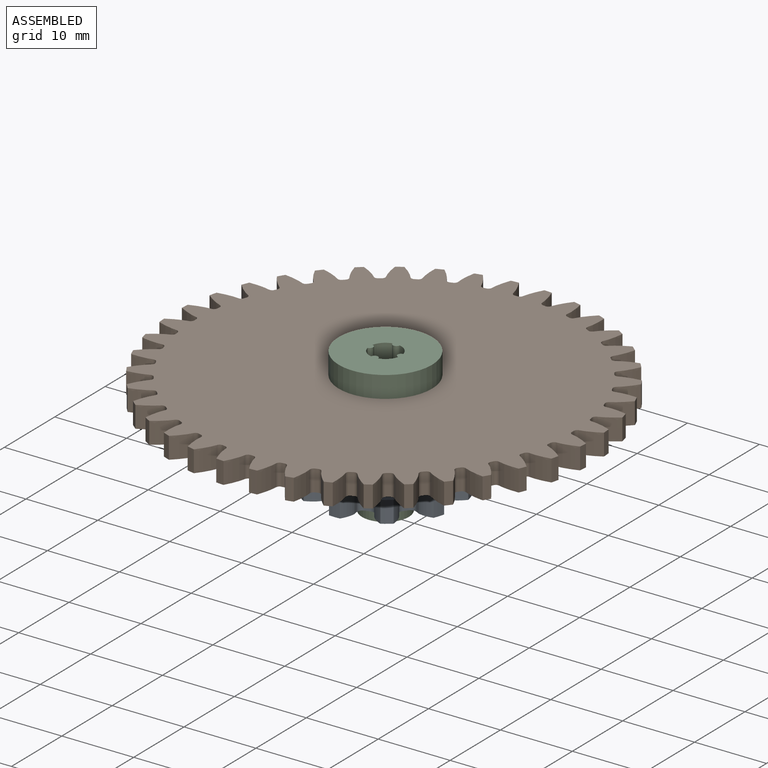
[diagram: assembled view]
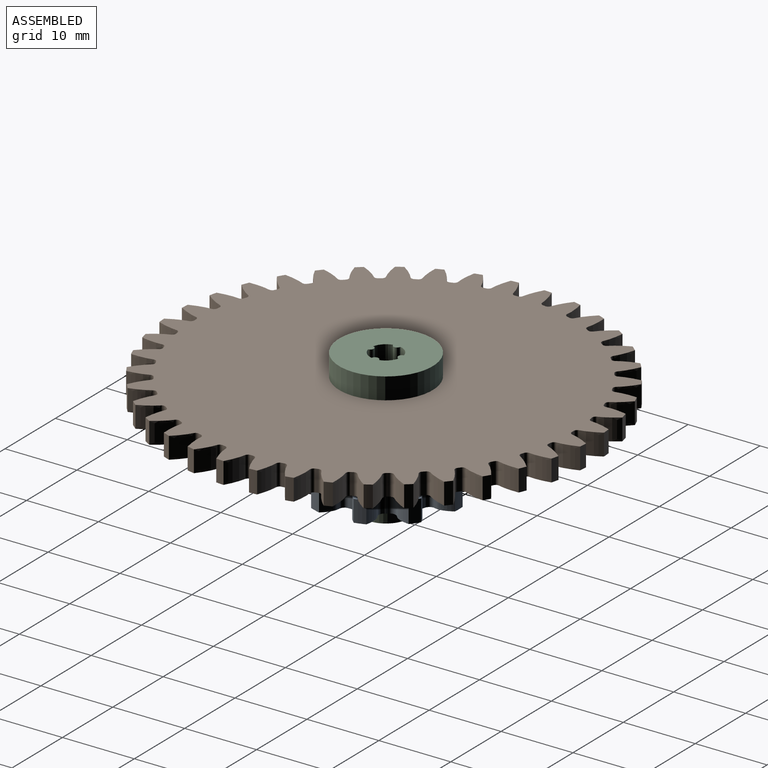
[diagram: assembled view, second angle]
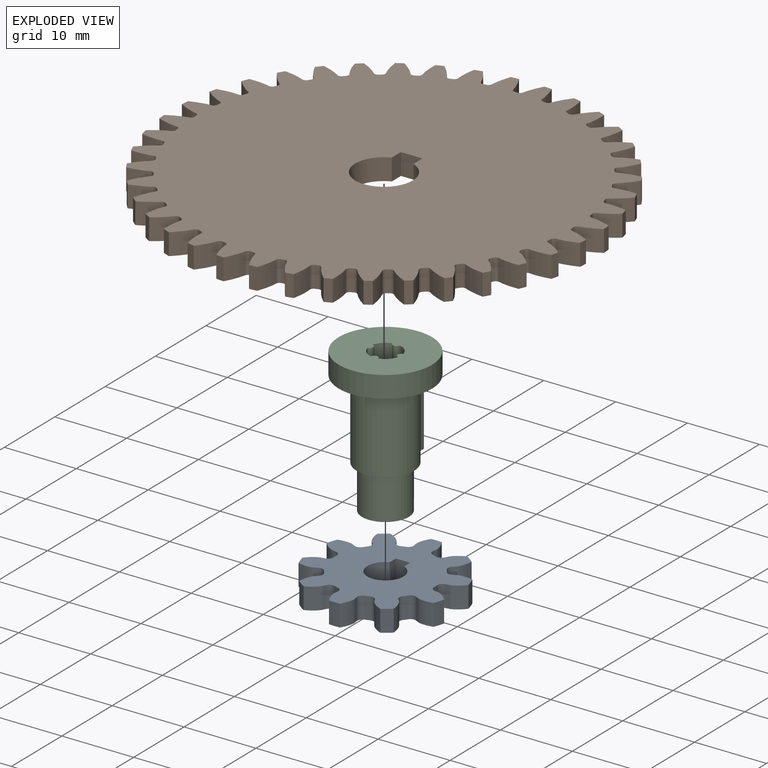
[diagram: exploded view]
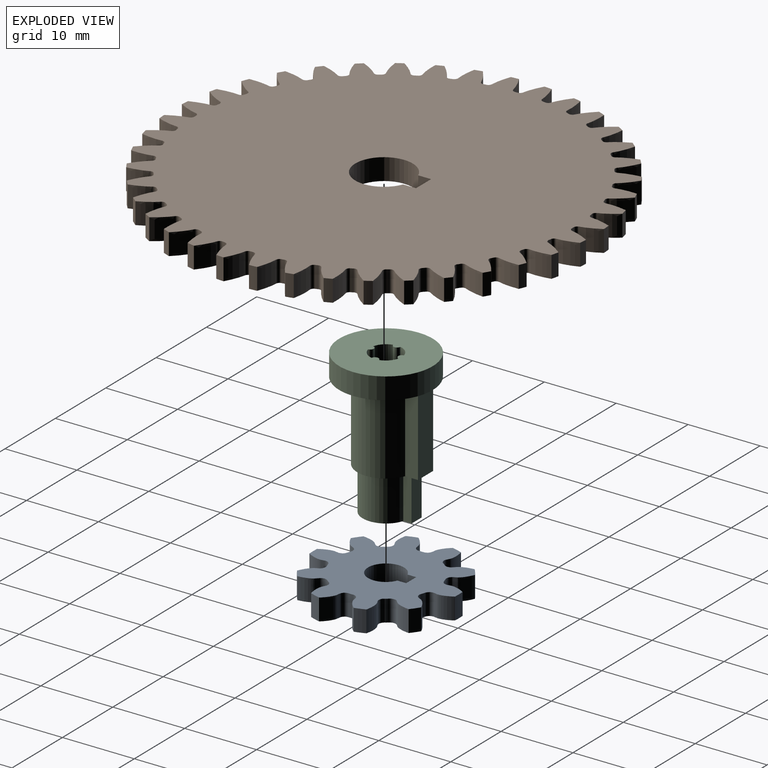
[diagram: exploded view, second angle]
ASSEMBLY  parts=3 mates=2
PART A: 66 faces, bbox 19.8x3x20.3 mm
  f0: cylinder r=10.15mm len=3mm, axis (0,1,0), area 4.5mm2, adj f9,f15,f56,f63
  f1: cylinder r=10.15mm len=3mm, axis (0,1,0), area 4.5mm2, adj f9,f15,f16,f58
  f2: cylinder r=10.15mm len=3mm, axis (0,1,0), area 4.5mm2, adj f9,f15,f46,f53
  f3: cylinder r=10.15mm len=3mm, axis (0,1,0), area 4.5mm2, adj f9,f15,f48,f61
  f4: cylinder r=10.15mm len=3mm, axis (0,1,0), area 4.5mm2, adj f9,f15,f36,f43
  f5: cylinder r=10.15mm len=3mm, axis (0,1,0), area 4.5mm2, adj f9,f15,f31,f38
  f6: cylinder r=10.15mm len=3mm, axis (0,1,0), area 4.5mm2, adj f9,f15,f26,f33
  f7: cylinder r=10.15mm len=3mm, axis (0,1,0), area 4.5mm2, adj f9,f15,f28,f51
  f8: cylinder r=10.15mm len=3mm, axis (0,1,0), area 4.5mm2, adj f9,f15,f23,f41
  f9: plane 20.3x19.75mm, normal (0,-1,0), area 212.5mm2, adj f0,f1,f2,f3,f4,f5,f6,f7
  f10: plane 3x1.21mm, normal (-1,0,0), area 3.6mm2, adj f9,f11,f13,f15
  f11: cylinder r=2.5mm len=5mm, axis (0,1,0), area 41mm2, adj f9,f10,f12,f15
  f12: plane 3x1.21mm, normal (1,0,0), area 3.6mm2, adj f9,f11,f13,f15
  f13: plane 3x2mm, normal (0,0,-1), area 6mm2, adj f9,f10,f12,f15
  f14: cylinder r=10.15mm len=3mm, axis (0,1,0), area 4.5mm2, adj f9,f15,f18,f21
  f15: plane 20.3x19.75mm, normal (0,1,0), area 212.5mm2, adj f0,f1,f2,f3,f4,f5,f6,f7
  f16: extruded ~3x2.21mm, area 8mm2, adj f1,f9,f15,f19
  f17: cylinder r=7mm len=3mm, axis (0,1,0), area 1.8mm2, adj f9,f15,f19,f20
  f18: extruded ~3x2.21mm, area 8mm2, adj f9,f14,f15,f20
  f19: cylinder r=0.77mm len=3mm, axis (0,1,0), area 3.4mm2, adj f9,f15,f16,f17
  f20: cylinder r=0.77mm len=3mm, axis (0,1,0), area 3.4mm2, adj f9,f15,f17,f18
  f21: extruded ~3x2.56mm, area 8mm2, adj f9,f14,f15,f24
  f22: cylinder r=7mm len=3mm, axis (0,1,0), area 1.8mm2, adj f9,f15,f24,f25
  f23: extruded ~3x2.36mm, area 8mm2, adj f8,f9,f15,f25
  f24: cylinder r=0.77mm len=3mm, axis (0,1,0), area 3.4mm2, adj f9,f15,f21,f22
  f25: cylinder r=0.77mm len=3mm, axis (0,1,0), area 3.4mm2, adj f9,f15,f22,f23
  f26: extruded ~3x2.21mm, area 8mm2, adj f6,f9,f15,f29
  f27: cylinder r=7mm len=3mm, axis (0,1,0), area 1.8mm2, adj f9,f15,f29,f30
  f28: extruded ~3x2.21mm, area 8mm2, adj f7,f9,f15,f30
  f29: cylinder r=0.77mm len=3mm, axis (0,1,0), area 3.4mm2, adj f9,f15,f26,f27
  f30: cylinder r=0.77mm len=3mm, axis (0,1,0), area 3.4mm2, adj f9,f15,f27,f28
  f31: extruded ~3x2.36mm, area 8mm2, adj f5,f9,f15,f34
  f32: cylinder r=7mm len=3mm, axis (0,1,0), area 1.8mm2, adj f9,f15,f34,f35
  f33: extruded ~3x2.56mm, area 8mm2, adj f6,f9,f15,f35
  f34: cylinder r=0.77mm len=3mm, axis (0,1,0), area 3.4mm2, adj f9,f15,f31,f32
  f35: cylinder r=0.77mm len=3mm, axis (0,1,0), area 3.4mm2, adj f9,f15,f32,f33
  f36: extruded ~3x2.5mm, area 8mm2, adj f4,f9,f15,f39
  f37: cylinder r=7mm len=3mm, axis (0,1,0), area 1.8mm2, adj f9,f15,f39,f40
  f38: extruded ~3x1.93mm, area 8mm2, adj f5,f9,f15,f40
  f39: cylinder r=0.77mm len=3mm, axis (0,1,0), area 3.4mm2, adj f9,f15,f36,f37
  f40: cylinder r=0.77mm len=3mm, axis (0,1,0), area 3.4mm2, adj f9,f15,f37,f38
  f41: extruded ~3x1.93mm, area 8mm2, adj f8,f9,f15,f44
  f42: cylinder r=7mm len=3mm, axis (0,1,0), area 1.8mm2, adj f9,f15,f44,f45
  f43: extruded ~3x2.5mm, area 8mm2, adj f4,f9,f15,f45
  f44: cylinder r=0.77mm len=3mm, axis (0,1,0), area 3.4mm2, adj f9,f15,f41,f42
  f45: cylinder r=0.77mm len=3mm, axis (0,1,0), area 3.4mm2, adj f9,f15,f42,f43
  f46: extruded ~3x1.93mm, area 8mm2, adj f2,f9,f15,f49
  f47: cylinder r=7mm len=3mm, axis (0,1,0), area 1.8mm2, adj f9,f15,f49,f50
  f48: extruded ~3x2.5mm, area 8mm2, adj f3,f9,f15,f50
  f49: cylinder r=0.77mm len=3mm, axis (0,1,0), area 3.4mm2, adj f9,f15,f46,f47
  f50: cylinder r=0.77mm len=3mm, axis (0,1,0), area 3.4mm2, adj f9,f15,f47,f48
  f51: extruded ~3x2.56mm, area 8mm2, adj f7,f9,f15,f54
  f52: cylinder r=7mm len=3mm, axis (0,1,0), area 1.8mm2, adj f9,f15,f54,f55
  f53: extruded ~3x2.36mm, area 8mm2, adj f2,f9,f15,f55
  f54: cylinder r=0.77mm len=3mm, axis (0,1,0), area 3.4mm2, adj f9,f15,f51,f52
  f55: cylinder r=0.77mm len=3mm, axis (0,1,0), area 3.4mm2, adj f9,f15,f52,f53
  f56: extruded ~3x2.36mm, area 8mm2, adj f0,f9,f15,f59
  f57: cylinder r=7mm len=3mm, axis (0,1,0), area 1.8mm2, adj f9,f15,f59,f60
  f58: extruded ~3x2.56mm, area 8mm2, adj f1,f9,f15,f60
  f59: cylinder r=0.77mm len=3mm, axis (0,1,0), area 3.4mm2, adj f9,f15,f56,f57
  f60: cylinder r=0.77mm len=3mm, axis (0,1,0), area 3.4mm2, adj f9,f15,f57,f58
  f61: extruded ~3x2.5mm, area 8mm2, adj f3,f9,f15,f64
  f62: cylinder r=7mm len=3mm, axis (0,1,0), area 1.8mm2, adj f9,f15,f64,f65
  f63: extruded ~3x1.93mm, area 8mm2, adj f0,f9,f15,f65
  f64: cylinder r=0.77mm len=3mm, axis (0,1,0), area 3.4mm2, adj f9,f15,f61,f62
  f65: cylinder r=0.77mm len=3mm, axis (0,1,0), area 3.4mm2, adj f9,f15,f62,f63
PART B: 246 faces, bbox 58.7x3x58.7 mm
  f0: cylinder r=29.4mm len=3mm, axis (0,1,0), area 3.2mm2, adj f39,f45,f151,f243
  f1: cylinder r=29.4mm len=3mm, axis (0,1,0), area 3.2mm2, adj f39,f45,f238,f241
  f2: cylinder r=29.4mm len=3mm, axis (0,1,0), area 3.2mm2, adj f39,f45,f233,f236
  f3: cylinder r=29.4mm len=3mm, axis (0,1,0), area 3.2mm2, adj f39,f45,f228,f231
  f4: cylinder r=29.4mm len=3mm, axis (0,1,0), area 3.2mm2, adj f39,f45,f223,f226
  f5: cylinder r=29.4mm len=3mm, axis (0,1,0), area 3.2mm2, adj f39,f45,f218,f221
  f6: cylinder r=29.4mm len=3mm, axis (0,1,0), area 3.2mm2, adj f39,f45,f213,f216
  f7: cylinder r=29.4mm len=3mm, axis (0,1,0), area 3.2mm2, adj f39,f45,f208,f211
  f8: cylinder r=29.4mm len=3mm, axis (0,1,0), area 3.2mm2, adj f39,f45,f196,f203
  f9: cylinder r=29.4mm len=3mm, axis (0,1,0), area 3.2mm2, adj f39,f45,f198,f206
  f10: cylinder r=29.4mm len=3mm, axis (0,1,0), area 3.2mm2, adj f39,f45,f193,f201
  f11: cylinder r=29.4mm len=3mm, axis (0,1,0), area 3.2mm2, adj f39,f45,f188,f191
  f12: cylinder r=29.4mm len=3mm, axis (0,1,0), area 3.2mm2, adj f39,f45,f183,f186
  f13: cylinder r=29.4mm len=3mm, axis (0,1,0), area 3.2mm2, adj f39,f45,f178,f181
  f14: cylinder r=29.4mm len=3mm, axis (0,1,0), area 3.2mm2, adj f39,f45,f173,f176
  f15: cylinder r=29.4mm len=3mm, axis (0,1,0), area 3.2mm2, adj f39,f45,f168,f171
  f16: cylinder r=29.4mm len=3mm, axis (0,1,0), area 3.2mm2, adj f39,f45,f141,f163
  f17: cylinder r=29.4mm len=3mm, axis (0,1,0), area 3.2mm2, adj f39,f45,f158,f161
  f18: cylinder r=29.4mm len=3mm, axis (0,1,0), area 3.2mm2, adj f39,f45,f146,f153
  f19: cylinder r=29.4mm len=3mm, axis (0,1,0), area 3.2mm2, adj f39,f45,f148,f156
  f20: cylinder r=29.4mm len=3mm, axis (0,1,0), area 3.2mm2, adj f39,f45,f136,f143
  f21: cylinder r=29.4mm len=3mm, axis (0,1,0), area 3.2mm2, adj f39,f45,f131,f138
  f22: cylinder r=29.4mm len=3mm, axis (0,1,0), area 3.2mm2, adj f39,f45,f126,f133
  f23: cylinder r=29.4mm len=3mm, axis (0,1,0), area 3.2mm2, adj f39,f45,f86,f128
  f24: cylinder r=29.4mm len=3mm, axis (0,1,0), area 3.2mm2, adj f39,f45,f46,f123
  f25: cylinder r=29.4mm len=3mm, axis (0,1,0), area 3.2mm2, adj f39,f45,f118,f121
  f26: cylinder r=29.4mm len=3mm, axis (0,1,0), area 3.2mm2, adj f39,f45,f113,f116
  f27: cylinder r=29.4mm len=3mm, axis (0,1,0), area 3.2mm2, adj f39,f45,f108,f111
  f28: cylinder r=29.4mm len=3mm, axis (0,1,0), area 3.2mm2, adj f39,f45,f96,f103
  f29: cylinder r=29.4mm len=3mm, axis (0,1,0), area 3.2mm2, adj f39,f45,f98,f106
  f30: cylinder r=29.4mm len=3mm, axis (0,1,0), area 3.2mm2, adj f39,f45,f93,f101
  f31: cylinder r=29.4mm len=3mm, axis (0,1,0), area 3.2mm2, adj f39,f45,f88,f91
  f32: cylinder r=29.4mm len=3mm, axis (0,1,0), area 3.2mm2, adj f39,f45,f71,f83
  f33: cylinder r=29.4mm len=3mm, axis (0,1,0), area 3.2mm2, adj f39,f45,f78,f81
  f34: cylinder r=29.4mm len=3mm, axis (0,1,0), area 3.2mm2, adj f39,f45,f66,f73
  f35: cylinder r=29.4mm len=3mm, axis (0,1,0), area 3.2mm2, adj f39,f45,f68,f166
  f36: cylinder r=29.4mm len=3mm, axis (0,1,0), area 3.2mm2, adj f39,f45,f63,f76
  f37: cylinder r=29.4mm len=3mm, axis (0,1,0), area 3.2mm2, adj f39,f45,f58,f61
  f38: cylinder r=29.4mm len=3mm, axis (0,1,0), area 3.2mm2, adj f39,f45,f53,f56
  f39: plane 58.69x58.69mm, normal (0,-1,0), area 2389.5mm2, adj f0,f1,f2,f3,f4,f5,f6,f7
  f40: plane 3x1.79mm, normal (-1,0,0), area 5.4mm2, adj f39,f41,f43,f45
  f41: cylinder r=4mm len=8mm, axis (0,1,0), area 66.2mm2, adj f39,f40,f42,f45
  f42: plane 3x1.79mm, normal (1,0,0), area 5.4mm2, adj f39,f41,f43,f45
  f43: plane 3x3mm, normal (0,0,-1), area 9mm2, adj f39,f40,f42,f45
  f44: cylinder r=29.4mm len=3mm, axis (0,1,0), area 3.2mm2, adj f39,f45,f48,f51
  f45: plane 58.69x58.69mm, normal (0,1,0), area 2389.5mm2, adj f0,f1,f2,f3,f4,f5,f6,f7
  f46: extruded ~3x2.69mm, area 8.8mm2, adj f24,f39,f45,f49
  f47: cylinder r=26.25mm len=3mm, axis (0,1,0), area 1.2mm2, adj f39,f45,f49,f50
  f48: extruded ~3x2.69mm, area 8.8mm2, adj f39,f44,f45,f50
  f49: cylinder r=0.5mm len=3mm, axis (0,1,0), area 2.1mm2, adj f39,f45,f46,f47
  f50: cylinder r=0.5mm len=3mm, axis (0,1,0), area 2.1mm2, adj f39,f45,f47,f48
  f51: extruded ~3x2.83mm, area 8.8mm2, adj f39,f44,f45,f54
  f52: cylinder r=26.25mm len=3mm, axis (0,1,0), area 1.2mm2, adj f39,f45,f54,f55
  f53: extruded ~3x2.49mm, area 8.8mm2, adj f38,f39,f45,f55
  f54: cylinder r=0.5mm len=3mm, axis (0,1,0), area 2.1mm2, adj f39,f45,f51,f52
  f55: cylinder r=0.5mm len=3mm, axis (0,1,0), area 2.1mm2, adj f39,f45,f52,f53
  f56: extruded ~3x2.9mm, area 8.8mm2, adj f38,f39,f45,f59
  f57: cylinder r=26.25mm len=3mm, axis (0,1,0), area 1.2mm2, adj f39,f45,f59,f60
  f58: extruded ~3x2.23mm, area 8.8mm2, adj f37,f39,f45,f60
  f59: cylinder r=0.5mm len=3mm, axis (0,1,0), area 2.1mm2, adj f39,f45,f56,f57
  f60: cylinder r=0.5mm len=3mm, axis (0,1,0), area 2.1mm2, adj f39,f45,f57,f58
  f61: extruded ~3x2.89mm, area 8.8mm2, adj f37,f39,f45,f64
  f62: cylinder r=26.25mm len=3mm, axis (0,1,0), area 1.2mm2, adj f39,f45,f64,f65
  f63: extruded ~3x2.19mm, area 8.8mm2, adj f36,f39,f45,f65
  f64: cylinder r=0.5mm len=3mm, axis (0,1,0), area 2.1mm2, adj f39,f45,f61,f62
  f65: cylinder r=0.5mm len=3mm, axis (0,1,0), area 2.1mm2, adj f39,f45,f62,f63
  f66: extruded ~3x2.19mm, area 8.8mm2, adj f34,f39,f45,f69
  f67: cylinder r=26.25mm len=3mm, axis (0,1,0), area 1.2mm2, adj f39,f45,f69,f70
  f68: extruded ~3x2.89mm, area 8.8mm2, adj f35,f39,f45,f70
  f69: cylinder r=0.5mm len=3mm, axis (0,1,0), area 2.1mm2, adj f39,f45,f66,f67
  f70: cylinder r=0.5mm len=3mm, axis (0,1,0), area 2.1mm2, adj f39,f45,f67,f68
  f71: extruded ~3x2.46mm, area 8.8mm2, adj f32,f39,f45,f74
  f72: cylinder r=26.25mm len=3mm, axis (0,1,0), area 1.2mm2, adj f39,f45,f74,f75
  f73: extruded ~3x2.82mm, area 8.8mm2, adj f34,f39,f45,f75
  f74: cylinder r=0.5mm len=3mm, axis (0,1,0), area 2.1mm2, adj f39,f45,f71,f72
  f75: cylinder r=0.5mm len=3mm, axis (0,1,0), area 2.1mm2, adj f39,f45,f72,f73
  f76: extruded ~3x2.82mm, area 8.8mm2, adj f36,f39,f45,f79
  f77: cylinder r=26.25mm len=3mm, axis (0,1,0), area 1.2mm2, adj f39,f45,f79,f80
  f78: extruded ~3x2.46mm, area 8.8mm2, adj f33,f39,f45,f80
  f79: cylinder r=0.5mm len=3mm, axis (0,1,0), area 2.1mm2, adj f39,f45,f76,f77
  f80: cylinder r=0.5mm len=3mm, axis (0,1,0), area 2.1mm2, adj f39,f45,f77,f78
  f81: extruded ~3x2.67mm, area 8.8mm2, adj f33,f39,f45,f84
  f82: cylinder r=26.25mm len=3mm, axis (0,1,0), area 1.2mm2, adj f39,f45,f84,f85
  f83: extruded ~3x2.67mm, area 8.8mm2, adj f32,f39,f45,f85
  f84: cylinder r=0.5mm len=3mm, axis (0,1,0), area 2.1mm2, adj f39,f45,f81,f82
  f85: cylinder r=0.5mm len=3mm, axis (0,1,0), area 2.1mm2, adj f39,f45,f82,f83
  f86: extruded ~3x2.9mm, area 8.8mm2, adj f23,f39,f45,f89
  f87: cylinder r=26.25mm len=3mm, axis (0,1,0), area 1.2mm2, adj f39,f45,f89,f90
  f88: extruded ~3x2.23mm, area 8.8mm2, adj f31,f39,f45,f90
  f89: cylinder r=0.5mm len=3mm, axis (0,1,0), area 2.1mm2, adj f39,f45,f86,f87
  f90: cylinder r=0.5mm len=3mm, axis (0,1,0), area 2.1mm2, adj f39,f45,f87,f88
  f91: extruded ~3x2.89mm, area 8.8mm2, adj f31,f39,f45,f94
  f92: cylinder r=26.25mm len=3mm, axis (0,1,0), area 1.2mm2, adj f39,f45,f94,f95
  f93: extruded ~3x2.19mm, area 8.8mm2, adj f30,f39,f45,f95
  f94: cylinder r=0.5mm len=3mm, axis (0,1,0), area 2.1mm2, adj f39,f45,f91,f92
  f95: cylinder r=0.5mm len=3mm, axis (0,1,0), area 2.1mm2, adj f39,f45,f92,f93
  f96: extruded ~3x2.67mm, area 8.8mm2, adj f28,f39,f45,f99
  f97: cylinder r=26.25mm len=3mm, axis (0,1,0), area 1.2mm2, adj f39,f45,f99,f100
  f98: extruded ~3x2.67mm, area 8.8mm2, adj f29,f39,f45,f100
  f99: cylinder r=0.5mm len=3mm, axis (0,1,0), area 2.1mm2, adj f39,f45,f96,f97
  f100: cylinder r=0.5mm len=3mm, axis (0,1,0), area 2.1mm2, adj f39,f45,f97,f98
  f101: extruded ~3x2.82mm, area 8.8mm2, adj f30,f39,f45,f104
  f102: cylinder r=26.25mm len=3mm, axis (0,1,0), area 1.2mm2, adj f39,f45,f104,f105
  f103: extruded ~3x2.46mm, area 8.8mm2, adj f28,f39,f45,f105
  f104: cylinder r=0.5mm len=3mm, axis (0,1,0), area 2.1mm2, adj f39,f45,f101,f102
  f105: cylinder r=0.5mm len=3mm, axis (0,1,0), area 2.1mm2, adj f39,f45,f102,f103
  f106: extruded ~3x2.46mm, area 8.8mm2, adj f29,f39,f45,f109
  f107: cylinder r=26.25mm len=3mm, axis (0,1,0), area 1.2mm2, adj f39,f45,f109,f110
  f108: extruded ~3x2.82mm, area 8.8mm2, adj f27,f39,f45,f110
  f109: cylinder r=0.5mm len=3mm, axis (0,1,0), area 2.1mm2, adj f39,f45,f106,f107
  f110: cylinder r=0.5mm len=3mm, axis (0,1,0), area 2.1mm2, adj f39,f45,f107,f108
  f111: extruded ~3x2.19mm, area 8.8mm2, adj f27,f39,f45,f114
  f112: cylinder r=26.25mm len=3mm, axis (0,1,0), area 1.2mm2, adj f39,f45,f114,f115
  f113: extruded ~3x2.89mm, area 8.8mm2, adj f26,f39,f45,f115
  f114: cylinder r=0.5mm len=3mm, axis (0,1,0), area 2.1mm2, adj f39,f45,f111,f112
  f115: cylinder r=0.5mm len=3mm, axis (0,1,0), area 2.1mm2, adj f39,f45,f112,f113
  f116: extruded ~3x2.23mm, area 8.8mm2, adj f26,f39,f45,f119
  f117: cylinder r=26.25mm len=3mm, axis (0,1,0), area 1.2mm2, adj f39,f45,f119,f120
  f118: extruded ~3x2.9mm, area 8.8mm2, adj f25,f39,f45,f120
  f119: cylinder r=0.5mm len=3mm, axis (0,1,0), area 2.1mm2, adj f39,f45,f116,f117
  f120: cylinder r=0.5mm len=3mm, axis (0,1,0), area 2.1mm2, adj f39,f45,f117,f118
  f121: extruded ~3x2.49mm, area 8.8mm2, adj f25,f39,f45,f124
  f122: cylinder r=26.25mm len=3mm, axis (0,1,0), area 1.2mm2, adj f39,f45,f124,f125
  f123: extruded ~3x2.83mm, area 8.8mm2, adj f24,f39,f45,f125
  f124: cylinder r=0.5mm len=3mm, axis (0,1,0), area 2.1mm2, adj f39,f45,f121,f122
  f125: cylinder r=0.5mm len=3mm, axis (0,1,0), area 2.1mm2, adj f39,f45,f122,f123
  f126: extruded ~3x2.83mm, area 8.8mm2, adj f22,f39,f45,f129
  f127: cylinder r=26.25mm len=3mm, axis (0,1,0), area 1.2mm2, adj f39,f45,f129,f130
  f128: extruded ~3x2.49mm, area 8.8mm2, adj f23,f39,f45,f130
  f129: cylinder r=0.5mm len=3mm, axis (0,1,0), area 2.1mm2, adj f39,f45,f126,f127
  f130: cylinder r=0.5mm len=3mm, axis (0,1,0), area 2.1mm2, adj f39,f45,f127,f128
  f131: extruded ~3x2.69mm, area 8.8mm2, adj f21,f39,f45,f134
  f132: cylinder r=26.25mm len=3mm, axis (0,1,0), area 1.2mm2, adj f39,f45,f134,f135
  f133: extruded ~3x2.69mm, area 8.8mm2, adj f22,f39,f45,f135
  f134: cylinder r=0.5mm len=3mm, axis (0,1,0), area 2.1mm2, adj f39,f45,f131,f132
  f135: cylinder r=0.5mm len=3mm, axis (0,1,0), area 2.1mm2, adj f39,f45,f132,f133
  f136: extruded ~3x2.49mm, area 8.8mm2, adj f20,f39,f45,f139
  f137: cylinder r=26.25mm len=3mm, axis (0,1,0), area 1.2mm2, adj f39,f45,f139,f140
  f138: extruded ~3x2.83mm, area 8.8mm2, adj f21,f39,f45,f140
  f139: cylinder r=0.5mm len=3mm, axis (0,1,0), area 2.1mm2, adj f39,f45,f136,f137
  f140: cylinder r=0.5mm len=3mm, axis (0,1,0), area 2.1mm2, adj f39,f45,f137,f138
  f141: extruded ~3x2.23mm, area 8.8mm2, adj f16,f39,f45,f144
  f142: cylinder r=26.25mm len=3mm, axis (0,1,0), area 1.2mm2, adj f39,f45,f144,f145
  f143: extruded ~3x2.9mm, area 8.8mm2, adj f20,f39,f45,f145
  f144: cylinder r=0.5mm len=3mm, axis (0,1,0), area 2.1mm2, adj f39,f45,f141,f142
  f145: cylinder r=0.5mm len=3mm, axis (0,1,0), area 2.1mm2, adj f39,f45,f142,f143
  f146: extruded ~3x2.67mm, area 8.8mm2, adj f18,f39,f45,f149
  f147: cylinder r=26.25mm len=3mm, axis (0,1,0), area 1.2mm2, adj f39,f45,f149,f150
  f148: extruded ~3x2.67mm, area 8.8mm2, adj f19,f39,f45,f150
  f149: cylinder r=0.5mm len=3mm, axis (0,1,0), area 2.1mm2, adj f39,f45,f146,f147
  f150: cylinder r=0.5mm len=3mm, axis (0,1,0), area 2.1mm2, adj f39,f45,f147,f148
  f151: extruded ~3x2.82mm, area 8.8mm2, adj f0,f39,f45,f154
  f152: cylinder r=26.25mm len=3mm, axis (0,1,0), area 1.2mm2, adj f39,f45,f154,f155
  f153: extruded ~3x2.46mm, area 8.8mm2, adj f18,f39,f45,f155
  f154: cylinder r=0.5mm len=3mm, axis (0,1,0), area 2.1mm2, adj f39,f45,f151,f152
  f155: cylinder r=0.5mm len=3mm, axis (0,1,0), area 2.1mm2, adj f39,f45,f152,f153
  f156: extruded ~3x2.46mm, area 8.8mm2, adj f19,f39,f45,f159
  f157: cylinder r=26.25mm len=3mm, axis (0,1,0), area 1.2mm2, adj f39,f45,f159,f160
  f158: extruded ~3x2.82mm, area 8.8mm2, adj f17,f39,f45,f160
  f159: cylinder r=0.5mm len=3mm, axis (0,1,0), area 2.1mm2, adj f39,f45,f156,f157
  f160: cylinder r=0.5mm len=3mm, axis (0,1,0), area 2.1mm2, adj f39,f45,f157,f158
  f161: extruded ~3x2.19mm, area 8.8mm2, adj f17,f39,f45,f164
  f162: cylinder r=26.25mm len=3mm, axis (0,1,0), area 1.2mm2, adj f39,f45,f164,f165
  f163: extruded ~3x2.89mm, area 8.8mm2, adj f16,f39,f45,f165
  f164: cylinder r=0.5mm len=3mm, axis (0,1,0), area 2.1mm2, adj f39,f45,f161,f162
  f165: cylinder r=0.5mm len=3mm, axis (0,1,0), area 2.1mm2, adj f39,f45,f162,f163
  f166: extruded ~3x2.23mm, area 8.8mm2, adj f35,f39,f45,f169
  f167: cylinder r=26.25mm len=3mm, axis (0,1,0), area 1.2mm2, adj f39,f45,f169,f170
  f168: extruded ~3x2.9mm, area 8.8mm2, adj f15,f39,f45,f170
  f169: cylinder r=0.5mm len=3mm, axis (0,1,0), area 2.1mm2, adj f39,f45,f166,f167
  f170: cylinder r=0.5mm len=3mm, axis (0,1,0), area 2.1mm2, adj f39,f45,f167,f168
  f171: extruded ~3x2.49mm, area 8.8mm2, adj f15,f39,f45,f174
  f172: cylinder r=26.25mm len=3mm, axis (0,1,0), area 1.2mm2, adj f39,f45,f174,f175
  f173: extruded ~3x2.83mm, area 8.8mm2, adj f14,f39,f45,f175
  f174: cylinder r=0.5mm len=3mm, axis (0,1,0), area 2.1mm2, adj f39,f45,f171,f172
  f175: cylinder r=0.5mm len=3mm, axis (0,1,0), area 2.1mm2, adj f39,f45,f172,f173
  f176: extruded ~3x2.69mm, area 8.8mm2, adj f14,f39,f45,f179
  f177: cylinder r=26.25mm len=3mm, axis (0,1,0), area 1.2mm2, adj f39,f45,f179,f180
  f178: extruded ~3x2.69mm, area 8.8mm2, adj f13,f39,f45,f180
  f179: cylinder r=0.5mm len=3mm, axis (0,1,0), area 2.1mm2, adj f39,f45,f176,f177
  f180: cylinder r=0.5mm len=3mm, axis (0,1,0), area 2.1mm2, adj f39,f45,f177,f178
  f181: extruded ~3x2.83mm, area 8.8mm2, adj f13,f39,f45,f184
  f182: cylinder r=26.25mm len=3mm, axis (0,1,0), area 1.2mm2, adj f39,f45,f184,f185
  f183: extruded ~3x2.49mm, area 8.8mm2, adj f12,f39,f45,f185
  f184: cylinder r=0.5mm len=3mm, axis (0,1,0), area 2.1mm2, adj f39,f45,f181,f182
  f185: cylinder r=0.5mm len=3mm, axis (0,1,0), area 2.1mm2, adj f39,f45,f182,f183
  f186: extruded ~3x2.9mm, area 8.8mm2, adj f12,f39,f45,f189
  f187: cylinder r=26.25mm len=3mm, axis (0,1,0), area 1.2mm2, adj f39,f45,f189,f190
  f188: extruded ~3x2.23mm, area 8.8mm2, adj f11,f39,f45,f190
  f189: cylinder r=0.5mm len=3mm, axis (0,1,0), area 2.1mm2, adj f39,f45,f186,f187
  f190: cylinder r=0.5mm len=3mm, axis (0,1,0), area 2.1mm2, adj f39,f45,f187,f188
  f191: extruded ~3x2.89mm, area 8.8mm2, adj f11,f39,f45,f194
  f192: cylinder r=26.25mm len=3mm, axis (0,1,0), area 1.2mm2, adj f39,f45,f194,f195
  f193: extruded ~3x2.19mm, area 8.8mm2, adj f10,f39,f45,f195
  f194: cylinder r=0.5mm len=3mm, axis (0,1,0), area 2.1mm2, adj f39,f45,f191,f192
  f195: cylinder r=0.5mm len=3mm, axis (0,1,0), area 2.1mm2, adj f39,f45,f192,f193
  f196: extruded ~3x2.67mm, area 8.8mm2, adj f8,f39,f45,f199
  f197: cylinder r=26.25mm len=3mm, axis (0,1,0), area 1.2mm2, adj f39,f45,f199,f200
  f198: extruded ~3x2.67mm, area 8.8mm2, adj f9,f39,f45,f200
  f199: cylinder r=0.5mm len=3mm, axis (0,1,0), area 2.1mm2, adj f39,f45,f196,f197
  f200: cylinder r=0.5mm len=3mm, axis (0,1,0), area 2.1mm2, adj f39,f45,f197,f198
  f201: extruded ~3x2.82mm, area 8.8mm2, adj f10,f39,f45,f204
  f202: cylinder r=26.25mm len=3mm, axis (0,1,0), area 1.2mm2, adj f39,f45,f204,f205
  f203: extruded ~3x2.46mm, area 8.8mm2, adj f8,f39,f45,f205
  f204: cylinder r=0.5mm len=3mm, axis (0,1,0), area 2.1mm2, adj f39,f45,f201,f202
  f205: cylinder r=0.5mm len=3mm, axis (0,1,0), area 2.1mm2, adj f39,f45,f202,f203
  f206: extruded ~3x2.46mm, area 8.8mm2, adj f9,f39,f45,f209
  f207: cylinder r=26.25mm len=3mm, axis (0,1,0), area 1.2mm2, adj f39,f45,f209,f210
  f208: extruded ~3x2.82mm, area 8.8mm2, adj f7,f39,f45,f210
  f209: cylinder r=0.5mm len=3mm, axis (0,1,0), area 2.1mm2, adj f39,f45,f206,f207
  f210: cylinder r=0.5mm len=3mm, axis (0,1,0), area 2.1mm2, adj f39,f45,f207,f208
  f211: extruded ~3x2.19mm, area 8.8mm2, adj f7,f39,f45,f214
  f212: cylinder r=26.25mm len=3mm, axis (0,1,0), area 1.2mm2, adj f39,f45,f214,f215
  f213: extruded ~3x2.89mm, area 8.8mm2, adj f6,f39,f45,f215
  f214: cylinder r=0.5mm len=3mm, axis (0,1,0), area 2.1mm2, adj f39,f45,f211,f212
  f215: cylinder r=0.5mm len=3mm, axis (0,1,0), area 2.1mm2, adj f39,f45,f212,f213
  f216: extruded ~3x2.23mm, area 8.8mm2, adj f6,f39,f45,f219
  f217: cylinder r=26.25mm len=3mm, axis (0,1,0), area 1.2mm2, adj f39,f45,f219,f220
  f218: extruded ~3x2.9mm, area 8.8mm2, adj f5,f39,f45,f220
  f219: cylinder r=0.5mm len=3mm, axis (0,1,0), area 2.1mm2, adj f39,f45,f216,f217
  f220: cylinder r=0.5mm len=3mm, axis (0,1,0), area 2.1mm2, adj f39,f45,f217,f218
  f221: extruded ~3x2.49mm, area 8.8mm2, adj f5,f39,f45,f224
  f222: cylinder r=26.25mm len=3mm, axis (0,1,0), area 1.2mm2, adj f39,f45,f224,f225
  f223: extruded ~3x2.83mm, area 8.8mm2, adj f4,f39,f45,f225
  f224: cylinder r=0.5mm len=3mm, axis (0,1,0), area 2.1mm2, adj f39,f45,f221,f222
  f225: cylinder r=0.5mm len=3mm, axis (0,1,0), area 2.1mm2, adj f39,f45,f222,f223
  f226: extruded ~3x2.69mm, area 8.8mm2, adj f4,f39,f45,f229
  f227: cylinder r=26.25mm len=3mm, axis (0,1,0), area 1.2mm2, adj f39,f45,f229,f230
  f228: extruded ~3x2.69mm, area 8.8mm2, adj f3,f39,f45,f230
  f229: cylinder r=0.5mm len=3mm, axis (0,1,0), area 2.1mm2, adj f39,f45,f226,f227
  f230: cylinder r=0.5mm len=3mm, axis (0,1,0), area 2.1mm2, adj f39,f45,f227,f228
  f231: extruded ~3x2.83mm, area 8.8mm2, adj f3,f39,f45,f234
  f232: cylinder r=26.25mm len=3mm, axis (0,1,0), area 1.2mm2, adj f39,f45,f234,f235
  f233: extruded ~3x2.49mm, area 8.8mm2, adj f2,f39,f45,f235
  f234: cylinder r=0.5mm len=3mm, axis (0,1,0), area 2.1mm2, adj f39,f45,f231,f232
  f235: cylinder r=0.5mm len=3mm, axis (0,1,0), area 2.1mm2, adj f39,f45,f232,f233
  f236: extruded ~3x2.9mm, area 8.8mm2, adj f2,f39,f45,f239
  f237: cylinder r=26.25mm len=3mm, axis (0,1,0), area 1.2mm2, adj f39,f45,f239,f240
  f238: extruded ~3x2.23mm, area 8.8mm2, adj f1,f39,f45,f240
  f239: cylinder r=0.5mm len=3mm, axis (0,1,0), area 2.1mm2, adj f39,f45,f236,f237
  f240: cylinder r=0.5mm len=3mm, axis (0,1,0), area 2.1mm2, adj f39,f45,f237,f238
  f241: extruded ~3x2.89mm, area 8.8mm2, adj f1,f39,f45,f244
  f242: cylinder r=26.25mm len=3mm, axis (0,1,0), area 1.2mm2, adj f39,f45,f244,f245
  f243: extruded ~3x2.19mm, area 8.8mm2, adj f0,f39,f45,f245
  f244: cylinder r=0.5mm len=3mm, axis (0,1,0), area 2.1mm2, adj f39,f45,f241,f242
  f245: cylinder r=0.5mm len=3mm, axis (0,1,0), area 2.1mm2, adj f39,f45,f242,f243
PART C: 21 faces, bbox 13x13x20 mm
  f0: plane 13x13mm, normal (0,0,1), area 119mm2, adj f8,f13,f14,f15,f16,f17,f18,f19
  f1: plane 7.5x6.5mm, normal (0,0,-1), area 21.6mm2, adj f9,f10,f11,f12,f13,f14,f15,f16
  f2: plane 9.5x8mm, normal (0,0,-1), area 19.8mm2, adj f3,f4,f5,f6,f9,f10,f11,f12
  f3: plane 11x1.79mm, normal (-1,0,0), area 19.7mm2, adj f2,f4,f6,f7
  f4: cylinder r=4mm len=11mm, axis (0,0,-1), area 242.6mm2, adj f2,f3,f5,f7
  f5: plane 11x1.79mm, normal (1,0,0), area 19.7mm2, adj f2,f4,f6,f7
  f6: plane 11x3mm, normal (0,1,0), area 33mm2, adj f2,f3,f5,f7
  f7: plane 13x13mm, normal (0,0,-1), area 77.7mm2, adj f3,f4,f5,f6,f8
  f8: cylinder r=6.5mm len=13mm, axis (0,0,-1), area 122.5mm2, adj f0,f7
  f9: cylinder r=3.25mm len=6.5mm, axis (0,0,1), area 110.3mm2, adj f1,f2,f10,f12
  f10: plane 6x1.16mm, normal (-1,0,0), area 6.9mm2, adj f1,f2,f9,f11
  f11: plane 6x2mm, normal (0,1,0), area 12mm2, adj f1,f2,f10,f12
  f12: plane 6x1.16mm, normal (1,0,0), area 6.9mm2, adj f1,f2,f9,f11
  f13: cylinder r=0.5mm len=20mm, axis (0,0,1), area 29.1mm2, adj f0,f1,f14,f20
  f14: cylinder r=2.2mm len=20mm, axis (0,0,1), area 49.1mm2, adj f0,f1,f13,f15
  f15: cylinder r=0.5mm len=20mm, axis (0,0,1), area 29.1mm2, adj f0,f1,f14,f16
  f16: cylinder r=2.2mm len=20mm, axis (0,0,1), area 49.1mm2, adj f0,f1,f15,f17
  f17: cylinder r=0.5mm len=20mm, axis (0,0,1), area 29.1mm2, adj f0,f1,f16,f18
  f18: cylinder r=2.2mm len=20mm, axis (0,0,1), area 49.1mm2, adj f0,f1,f17,f19
  f19: cylinder r=0.5mm len=20mm, axis (0,0,1), area 29.1mm2, adj f0,f1,f18,f20
  f20: cylinder r=2.2mm len=20mm, axis (0,0,1), area 49.1mm2, adj f0,f1,f13,f19
PLACE A rot(axis=(0,0.71,0.71),180deg) t=(0,0,0)mm
PLACE B rot(axis=(-1,0,0),90deg) t=(0,-0.28,8)mm
PLACE C at identity fixed
MATE fastened A.f0 <-> C.f4  axis (0,0,1) through (0,0,0)mm
MATE fastened B.f0 <-> C.f7  axis (0,0,1) through (0,-0.29,11)mm
